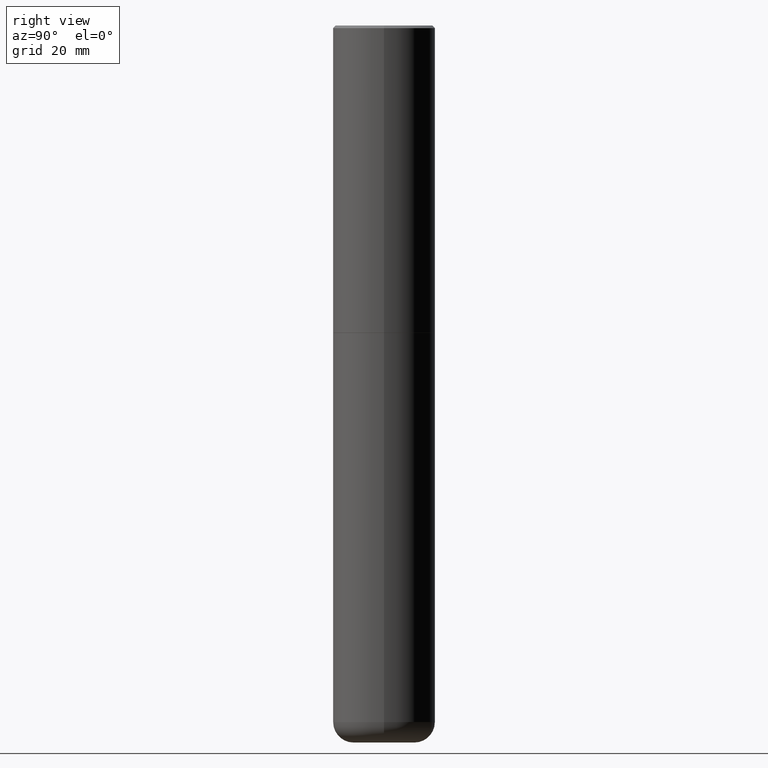
[diagram: clean part render]
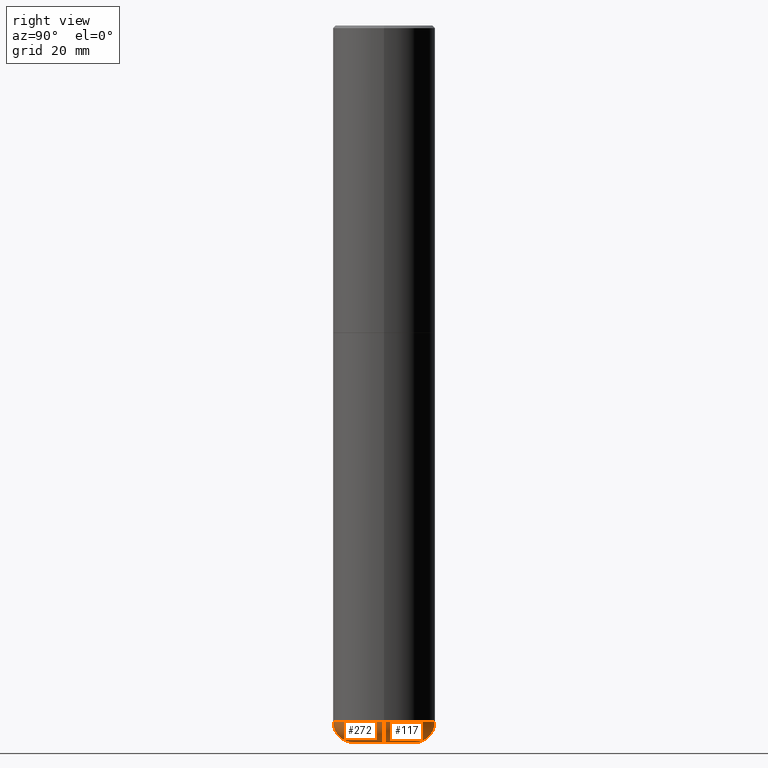
[diagram: same view with one multi-face feature highlighted, each face labeled with its STEP entity id]
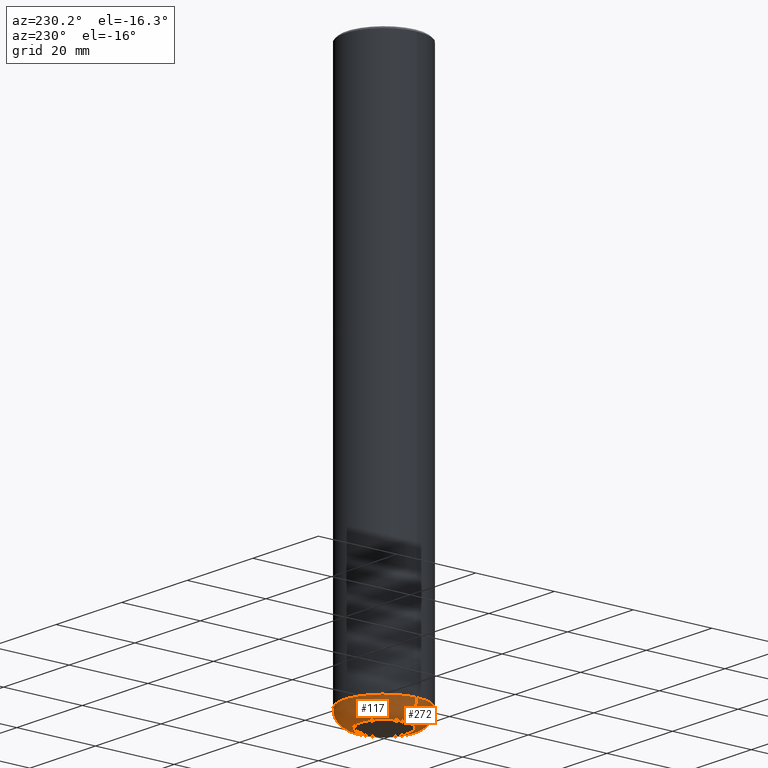
[diagram: same view with one multi-face feature highlighted, each face labeled with its STEP entity id]
A machine part, right view. The highlighted faces form ONE feature: a constant-radius fillet chain: 2 tangent blend faces with common blend radius 4.0005 mm. The faces share edges in the B-rep.
A second angle (auxiliary view) of the same feature is appended — it is thin or edge-on in the first view.
Their STEP definitions:
[1] entity #272 (Torus):
#3 = ORIENTED_EDGE ( 'NONE', *, *, #138, .F. ) ;
#9 = VERTEX_POINT ( 'NONE', #107 ) ;
#17 = EDGE_CURVE ( 'NONE', #364, #9, #254, .T. ) ;
#19 = DIRECTION ( 'NONE',  ( 1.000000000000000000, -6.982962677686266711E-15, 0.000000000000000000 ) ) ;
#25 = FACE_OUTER_BOUND ( 'NONE', #256, .T. ) ;
#29 = DIRECTION ( 'NONE',  ( -1.000000000000000000, 7.105427357601006592E-15, 0.000000000000000000 ) ) ;
#75 = CARTESIAN_POINT ( 'NONE',  ( 0.2362000000000000210, -2.034381431703735354E-14, -5.354300000000000281 ) ) ;
#107 = CARTESIAN_POINT ( 'NONE',  ( 0.3936999999999999389, -2.144363093877293707E-14, -5.354300000000000281 ) ) ;
#122 = CARTESIAN_POINT ( 'NONE',  ( 0.2362000000000000766, -2.089372262790514846E-14, -5.511800000000000033 ) ) ;
#125 = CARTESIAN_POINT ( 'NONE',  ( -0.3936999999999999389, -1.589703178188033670E-14, -5.354300000000000281 ) ) ;
#135 = AXIS2_PLACEMENT_3D ( 'NONE', #189, #314, #29 ) ;
#138 = EDGE_CURVE ( 'NONE', #350, #9, #360, .T. ) ;
#164 = AXIS2_PLACEMENT_3D ( 'NONE', #75, #326, #368 ) ;
#168 = DIRECTION ( 'NONE',  ( 1.000000000000000000, -6.982962677686270655E-15, 0.000000000000000000 ) ) ;
#172 = VERTEX_POINT ( 'NONE', #212 ) ;
#178 = AXIS2_PLACEMENT_3D ( 'NONE', #345, #407, #19 ) ;
#188 = AXIS2_PLACEMENT_3D ( 'NONE', #194, #323, #168 ) ;
#189 = CARTESIAN_POINT ( 'NONE',  ( -0.2362000000000000210, -1.701613659070249589E-14, -5.354300000000000281 ) ) ;
#194 = CARTESIAN_POINT ( 'NONE',  ( 1.347893496593123646E-28, -1.924434684343564878E-14, -5.511800000000000033 ) ) ;
#196 = TOROIDAL_SURFACE ( 'NONE', #211, 0.2362000000000000210, 0.1574999999999998346 ) ;
#208 = DIRECTION ( 'NONE',  ( 1.000000000000000000, -6.982962677686261977E-15, 4.883557194083110659E-29 ) ) ;
#211 = AXIS2_PLACEMENT_3D ( 'NONE', #308, #213, #208 ) ;
#212 = CARTESIAN_POINT ( 'NONE',  ( -0.2362000000000000766, -1.673153834172531691E-14, -5.511800000000000033 ) ) ;
#213 = DIRECTION ( 'NONE',  ( -2.445468806185136597E-29, 3.491481338843145583E-15, 1.000000000000000000 ) ) ;
#232 = ORIENTED_EDGE ( 'NONE', *, *, #408, .F. ) ;
#238 = ORIENTED_EDGE ( 'NONE', *, *, #17, .T. ) ;
#254 = CIRCLE ( 'NONE', #164, 0.1574999999999997791 ) ;
#256 = EDGE_LOOP ( 'NONE', ( #232, #315, #238, #3 ) ) ;
#272 = ADVANCED_FACE ( 'NONE', ( #25 ), #196, .T. ) ;
#277 = CIRCLE ( 'NONE', #188, 0.2362000000000000766 ) ;
#308 = CARTESIAN_POINT ( 'NONE',  ( 1.309377362895707575E-28, -1.869443853256785386E-14, -5.354300000000000281 ) ) ;
#314 = DIRECTION ( 'NONE',  ( 7.105427357601001859E-15, 1.000000000000000000, -3.491481338843145583E-15 ) ) ;
#315 = ORIENTED_EDGE ( 'NONE', *, *, #417, .T. ) ;
#323 = DIRECTION ( 'NONE',  ( -2.445468806185136597E-29, 3.491481338843145583E-15, 1.000000000000000000 ) ) ;
#326 = DIRECTION ( 'NONE',  ( -6.982962677686266711E-15, -1.000000000000000000, 3.491481338843145583E-15 ) ) ;
#338 = CIRCLE ( 'NONE', #135, 0.1574999999999997791 ) ;
#345 = CARTESIAN_POINT ( 'NONE',  ( 1.309377362895707575E-28, -1.869443853256785386E-14, -5.354300000000000281 ) ) ;
#350 = VERTEX_POINT ( 'NONE', #125 ) ;
#360 = CIRCLE ( 'NONE', #178, 0.3937000000000001054 ) ;
#364 = VERTEX_POINT ( 'NONE', #122 ) ;
#368 = DIRECTION ( 'NONE',  ( 1.000000000000000000, -6.982962677686272233E-15, 0.000000000000000000 ) ) ;
#407 = DIRECTION ( 'NONE',  ( -2.445468806185136597E-29, 3.491481338843145583E-15, 1.000000000000000000 ) ) ;
#408 = EDGE_CURVE ( 'NONE', #172, #350, #338, .T. ) ;
#417 = EDGE_CURVE ( 'NONE', #172, #364, #277, .T. ) ;
[2] entity #117 (Torus):
#8 = ORIENTED_EDGE ( 'NONE', *, *, #17, .F. ) ;
#9 = VERTEX_POINT ( 'NONE', #107 ) ;
#11 = AXIS2_PLACEMENT_3D ( 'NONE', #85, #112, #21 ) ;
#17 = EDGE_CURVE ( 'NONE', #364, #9, #254, .T. ) ;
#21 = DIRECTION ( 'NONE',  ( 1.000000000000000000, -6.982962677686261977E-15, 4.883557194083110659E-29 ) ) ;
#29 = DIRECTION ( 'NONE',  ( -1.000000000000000000, 7.105427357601006592E-15, 0.000000000000000000 ) ) ;
#31 = ORIENTED_EDGE ( 'NONE', *, *, #237, .T. ) ;
#48 = AXIS2_PLACEMENT_3D ( 'NONE', #145, #147, #348 ) ;
#61 = ORIENTED_EDGE ( 'NONE', *, *, #154, .F. ) ;
#75 = CARTESIAN_POINT ( 'NONE',  ( 0.2362000000000000210, -2.034381431703735354E-14, -5.354300000000000281 ) ) ;
#82 = DIRECTION ( 'NONE',  ( 1.000000000000000000, -6.982962677686270655E-15, 0.000000000000000000 ) ) ;
#85 = CARTESIAN_POINT ( 'NONE',  ( 1.309377362895707575E-28, -1.869443853256785386E-14, -5.354300000000000281 ) ) ;
#103 = AXIS2_PLACEMENT_3D ( 'NONE', #184, #246, #82 ) ;
#107 = CARTESIAN_POINT ( 'NONE',  ( 0.3936999999999999389, -2.144363093877293707E-14, -5.354300000000000281 ) ) ;
#110 = EDGE_LOOP ( 'NONE', ( #31, #266, #61, #8 ) ) ;
#112 = DIRECTION ( 'NONE',  ( -2.445468806185136597E-29, 3.491481338843145583E-15, 1.000000000000000000 ) ) ;
#117 = ADVANCED_FACE ( 'NONE', ( #305 ), #248, .T. ) ;
#122 = CARTESIAN_POINT ( 'NONE',  ( 0.2362000000000000766, -2.089372262790514846E-14, -5.511800000000000033 ) ) ;
#125 = CARTESIAN_POINT ( 'NONE',  ( -0.3936999999999999389, -1.589703178188033670E-14, -5.354300000000000281 ) ) ;
#135 = AXIS2_PLACEMENT_3D ( 'NONE', #189, #314, #29 ) ;
#145 = CARTESIAN_POINT ( 'NONE',  ( 1.309377362895707575E-28, -1.869443853256785386E-14, -5.354300000000000281 ) ) ;
#147 = DIRECTION ( 'NONE',  ( -2.445468806185136597E-29, 3.491481338843145583E-15, 1.000000000000000000 ) ) ;
#154 = EDGE_CURVE ( 'NONE', #9, #350, #243, .T. ) ;
#164 = AXIS2_PLACEMENT_3D ( 'NONE', #75, #326, #368 ) ;
#172 = VERTEX_POINT ( 'NONE', #212 ) ;
#184 = CARTESIAN_POINT ( 'NONE',  ( 1.347893496593123646E-28, -1.924434684343564878E-14, -5.511800000000000033 ) ) ;
#189 = CARTESIAN_POINT ( 'NONE',  ( -0.2362000000000000210, -1.701613659070249589E-14, -5.354300000000000281 ) ) ;
#212 = CARTESIAN_POINT ( 'NONE',  ( -0.2362000000000000766, -1.673153834172531691E-14, -5.511800000000000033 ) ) ;
#237 = EDGE_CURVE ( 'NONE', #364, #172, #378, .T. ) ;
#243 = CIRCLE ( 'NONE', #48, 0.3937000000000001054 ) ;
#246 = DIRECTION ( 'NONE',  ( -2.445468806185136597E-29, 3.491481338843145583E-15, 1.000000000000000000 ) ) ;
#248 = TOROIDAL_SURFACE ( 'NONE', #11, 0.2362000000000000210, 0.1574999999999998346 ) ;
#254 = CIRCLE ( 'NONE', #164, 0.1574999999999997791 ) ;
#266 = ORIENTED_EDGE ( 'NONE', *, *, #408, .T. ) ;
#305 = FACE_OUTER_BOUND ( 'NONE', #110, .T. ) ;
#314 = DIRECTION ( 'NONE',  ( 7.105427357601001859E-15, 1.000000000000000000, -3.491481338843145583E-15 ) ) ;
#326 = DIRECTION ( 'NONE',  ( -6.982962677686266711E-15, -1.000000000000000000, 3.491481338843145583E-15 ) ) ;
#338 = CIRCLE ( 'NONE', #135, 0.1574999999999997791 ) ;
#348 = DIRECTION ( 'NONE',  ( 1.000000000000000000, -6.982962677686266711E-15, 0.000000000000000000 ) ) ;
#350 = VERTEX_POINT ( 'NONE', #125 ) ;
#364 = VERTEX_POINT ( 'NONE', #122 ) ;
#368 = DIRECTION ( 'NONE',  ( 1.000000000000000000, -6.982962677686272233E-15, 0.000000000000000000 ) ) ;
#378 = CIRCLE ( 'NONE', #103, 0.2362000000000000766 ) ;
#408 = EDGE_CURVE ( 'NONE', #172, #350, #338, .T. ) ;